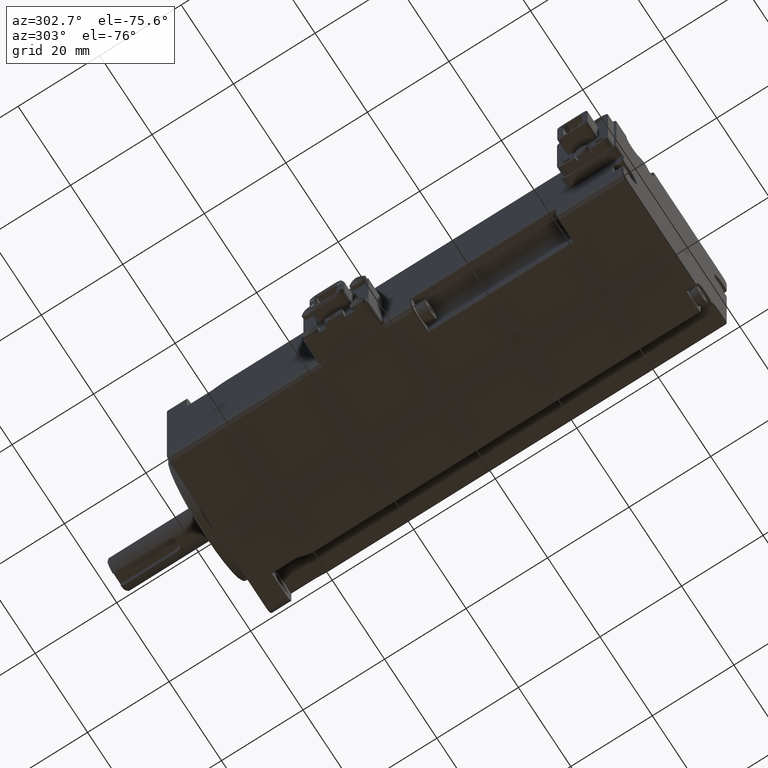
[diagram: clean part render]
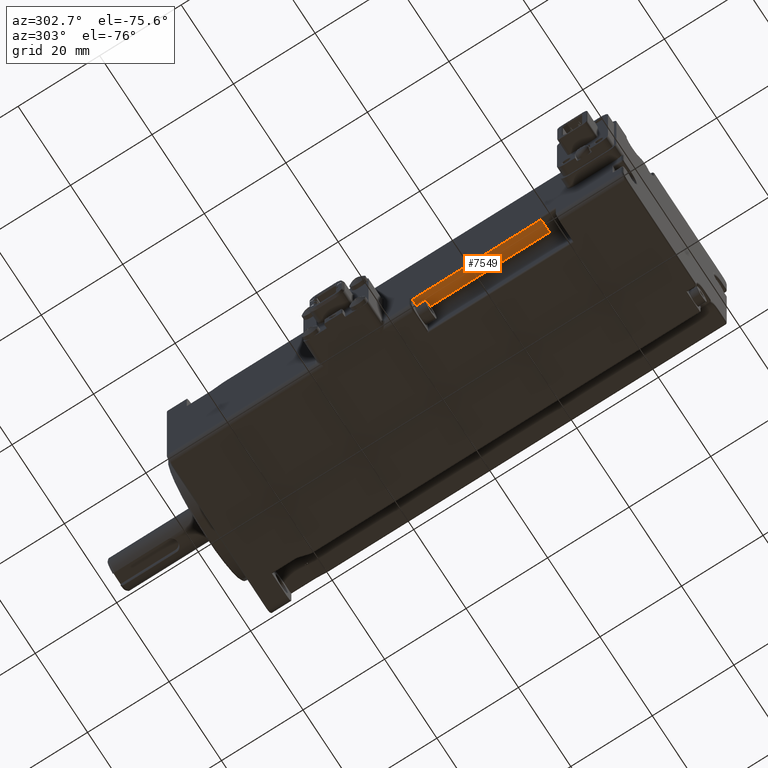
[diagram: same view with one face highlighted and labeled with its STEP entity id]
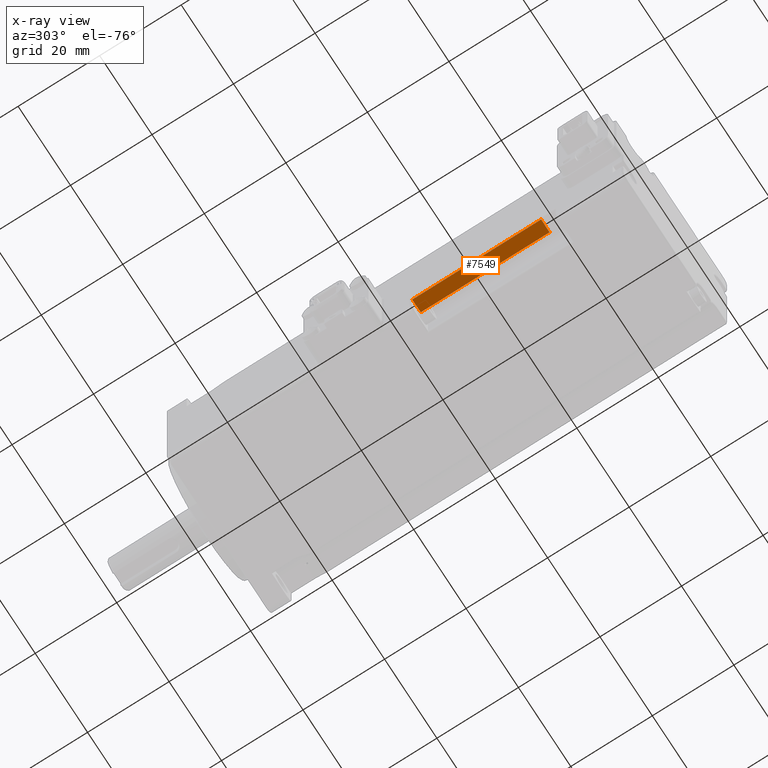
[diagram: x-ray of the same camera — body ghosted, the highlighted face saturated]
A machine part, auxiliary view. The second image highlights one B-rep face of the part: STEP entity #7549.
The next image is the same camera in x-ray: the body ghosted, the highlighted face saturated — about 0% of this face is hidden behind the body in this view.
In plain terms, the highlighted planar face has unit normal (0, 0, 1).
Its self-contained STEP definition (entity closure, byte-faithful):
#382 = LINE ( 'NONE', #17443, #23919 ) ;
#485 = VERTEX_POINT ( 'NONE', #7617 ) ;
#1696 = VERTEX_POINT ( 'NONE', #21298 ) ;
#1899 = CARTESIAN_POINT ( 'NONE',  ( -20.00000000000015277, -5.000000000000007994, -13.50345596729036401 ) ) ;
#2071 = LINE ( 'NONE', #9721, #19678 ) ;
#3296 = EDGE_LOOP ( 'NONE', ( #22092, #16737, #19707, #21216 ) ) ;
#4053 = DIRECTION ( 'NONE',  ( 8.922123391862154381E-15, 1.668049390122791593E-15, 1.000000000000000000 ) ) ;
#4178 = CARTESIAN_POINT ( 'NONE',  ( -20.00000000000017408, -51.80000000000001137, -13.50345596729028586 ) ) ;
#4608 = AXIS2_PLACEMENT_3D ( 'NONE', #4178, #4053, #8060 ) ;
#5245 = DIRECTION ( 'NONE',  ( 1.000000000000000000, -4.613964343715600876E-16, -9.065566151357647969E-15 ) ) ;
#5325 = CARTESIAN_POINT ( 'NONE',  ( -16.26345596729071374, -5.000000000000011546, -13.50345596729039599 ) ) ;
#7549 = ADVANCED_FACE ( 'NONE', ( #21365 ), #23356, .F. ) ;
#7617 = CARTESIAN_POINT ( 'NONE',  ( -16.26345596729072795, -36.60000000000001563, -13.50345596729034270 ) ) ;
#8060 = DIRECTION ( 'NONE',  ( -1.000000000000000000, 4.613964343715598903E-16, 8.922123391862154381E-15 ) ) ;
#9175 = EDGE_CURVE ( 'NONE', #10614, #1696, #382, .T. ) ;
#9721 = CARTESIAN_POINT ( 'NONE',  ( -16.26345596729073151, -51.80000000000001137, -13.50345596729031783 ) ) ;
#9781 = EDGE_CURVE ( 'NONE', #10614, #485, #14653, .T. ) ;
#10319 = VECTOR ( 'NONE', #5245, 1000.000000000000000 ) ;
#10614 = VERTEX_POINT ( 'NONE', #21506 ) ;
#10887 = CARTESIAN_POINT ( 'NONE',  ( -19.50000000000016698, -36.60000000000001563, -13.50345596729031250 ) ) ;
#11802 = DIRECTION ( 'NONE',  ( 4.613964343715449020E-16, 1.000000000000000000, -1.668049390122796326E-15 ) ) ;
#14653 = LINE ( 'NONE', #10887, #10319 ) ;
#15984 = DIRECTION ( 'NONE',  ( 4.613964343715449020E-16, 1.000000000000000000, -1.668049390122796326E-15 ) ) ;
#16467 = VECTOR ( 'NONE', #17441, 1000.000000000000000 ) ;
#16737 = ORIENTED_EDGE ( 'NONE', *, *, #9781, .F. ) ;
#17199 = LINE ( 'NONE', #1899, #16467 ) ;
#17441 = DIRECTION ( 'NONE',  ( 1.000000000000000000, -4.613964343715598903E-16, -8.922123391862154381E-15 ) ) ;
#17443 = CARTESIAN_POINT ( 'NONE',  ( -19.50000000000017408, -51.80000000000001137, -13.50345596729028941 ) ) ;
#19678 = VECTOR ( 'NONE', #15984, 1000.000000000000000 ) ;
#19707 = ORIENTED_EDGE ( 'NONE', *, *, #9175, .T. ) ;
#21131 = VERTEX_POINT ( 'NONE', #5325 ) ;
#21216 = ORIENTED_EDGE ( 'NONE', *, *, #21561, .T. ) ;
#21298 = CARTESIAN_POINT ( 'NONE',  ( -19.50000000000015277, -5.000000000000007994, -13.50345596729036757 ) ) ;
#21365 = FACE_OUTER_BOUND ( 'NONE', #3296, .T. ) ;
#21506 = CARTESIAN_POINT ( 'NONE',  ( -19.50000000000016698, -36.60000000000001563, -13.50345596729031250 ) ) ;
#21561 = EDGE_CURVE ( 'NONE', #1696, #21131, #17199, .T. ) ;
#21871 = EDGE_CURVE ( 'NONE', #485, #21131, #2071, .T. ) ;
#22092 = ORIENTED_EDGE ( 'NONE', *, *, #21871, .F. ) ;
#23356 = PLANE ( 'NONE',  #4608 ) ;
#23919 = VECTOR ( 'NONE', #11802, 1000.000000000000000 ) ;